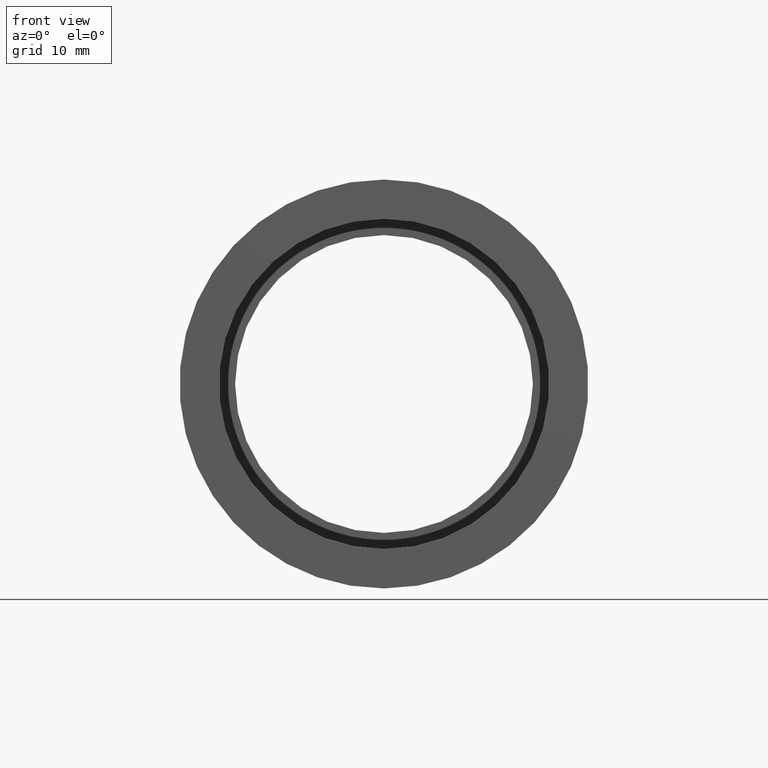
[diagram: clean part render]
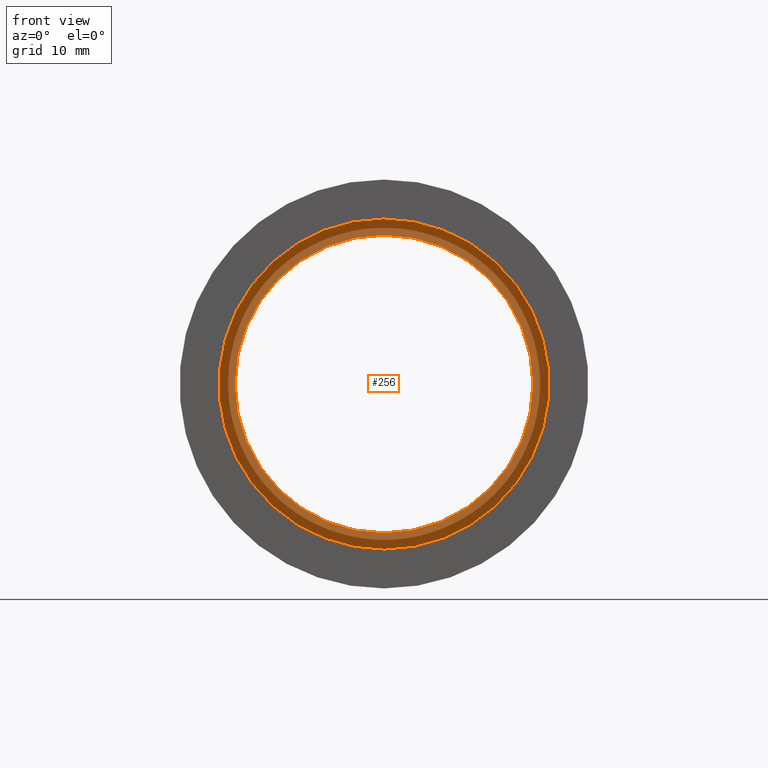
[diagram: same view with one face highlighted and labeled with its STEP entity id]
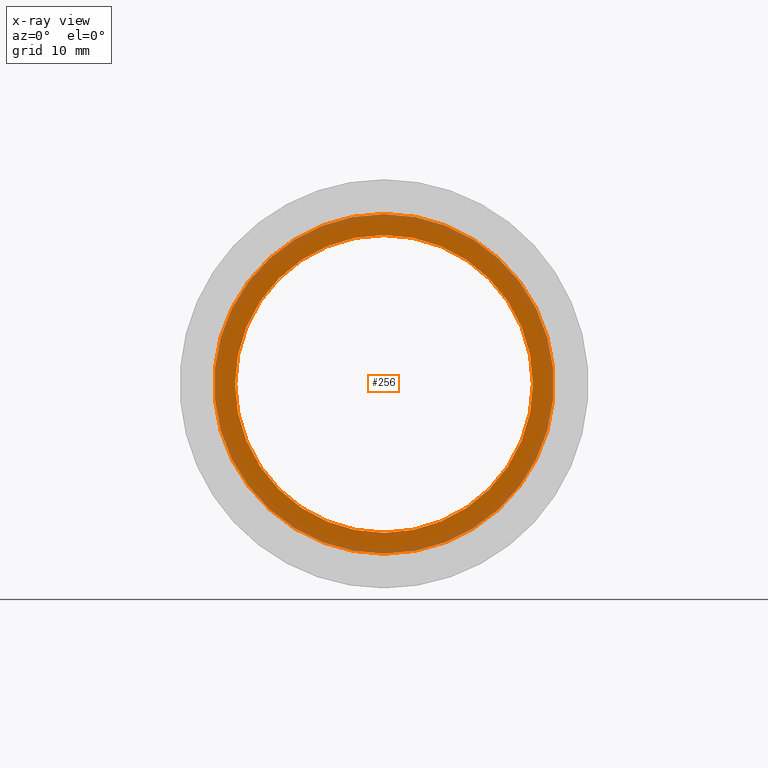
[diagram: x-ray of the same camera — body ghosted, the highlighted face saturated]
A machine part, front view. The second image highlights one B-rep face of the part: STEP entity #256.
The next image is the same camera in x-ray: the body ghosted, the highlighted face saturated — about 24% of this face is hidden behind the body in this view.
In plain terms, the highlighted planar face has unit normal (-0, 1, 0).
Its self-contained STEP definition (entity closure, byte-faithful):
#10 = AXIS2_PLACEMENT_3D ( 'NONE', #438, #198, #152 ) ;
#18 = VERTEX_POINT ( 'NONE', #231 ) ;
#31 = DIRECTION ( 'NONE',  ( 0.0000000000000000000, 0.0000000000000000000, 1.000000000000000000 ) ) ;
#38 = DIRECTION ( 'NONE',  ( 0.0000000000000000000, 0.0000000000000000000, 1.000000000000000000 ) ) ;
#41 = AXIS2_PLACEMENT_3D ( 'NONE', #609, #433, #92 ) ;
#68 = CARTESIAN_POINT ( 'NONE',  ( 0.0000000000000000000, 48.79999999999998300, 18.50000000000001100 ) ) ;
#75 = EDGE_CURVE ( 'NONE', #188, #18, #236, .T. ) ;
#92 = DIRECTION ( 'NONE',  ( 0.0000000000000000000, 0.0000000000000000000, 1.000000000000000000 ) ) ;
#111 = VERTEX_POINT ( 'NONE', #244 ) ;
#152 = DIRECTION ( 'NONE',  ( 0.0000000000000000000, 0.0000000000000000000, 1.000000000000000000 ) ) ;
#153 = EDGE_CURVE ( 'NONE', #610, #111, #466, .T. ) ;
#154 = EDGE_LOOP ( 'NONE', ( #577, #595 ) ) ;
#156 = CARTESIAN_POINT ( 'NONE',  ( 0.0000000000000000000, 48.79999999999998300, 0.0000000000000000000 ) ) ;
#188 = VERTEX_POINT ( 'NONE', #241 ) ;
#198 = DIRECTION ( 'NONE',  ( -0.0000000000000000000, 1.000000000000000000, -0.0000000000000000000 ) ) ;
#214 = FACE_BOUND ( 'NONE', #154, .T. ) ;
#231 = CARTESIAN_POINT ( 'NONE',  ( 2.584004746200916600E-015, 48.79999999999998300, -21.10000000000001200 ) ) ;
#236 = CIRCLE ( 'NONE', #554, 21.10000000000001200 ) ;
#241 = CARTESIAN_POINT ( 'NONE',  ( 0.0000000000000000000, 48.79999999999998300, 21.10000000000001200 ) ) ;
#243 = CARTESIAN_POINT ( 'NONE',  ( 0.0000000000000000000, 48.79999999999998300, 0.0000000000000000000 ) ) ;
#244 = CARTESIAN_POINT ( 'NONE',  ( 2.265596578422604600E-015, 48.79999999999998300, -18.50000000000001100 ) ) ;
#256 = ADVANCED_FACE ( 'NONE', ( #341, #214 ), #529, .F. ) ;
#276 = EDGE_CURVE ( 'NONE', #111, #610, #498, .T. ) ;
#301 = CIRCLE ( 'NONE', #539, 21.10000000000001200 ) ;
#341 = FACE_OUTER_BOUND ( 'NONE', #400, .T. ) ;
#355 = DIRECTION ( 'NONE',  ( 0.0000000000000000000, 0.0000000000000000000, 1.000000000000000000 ) ) ;
#382 = ORIENTED_EDGE ( 'NONE', *, *, #397, .F. ) ;
#397 = EDGE_CURVE ( 'NONE', #18, #188, #301, .T. ) ;
#400 = EDGE_LOOP ( 'NONE', ( #530, #382 ) ) ;
#433 = DIRECTION ( 'NONE',  ( -0.0000000000000000000, 1.000000000000000000, -0.0000000000000000000 ) ) ;
#435 = AXIS2_PLACEMENT_3D ( 'NONE', #528, #617, #38 ) ;
#438 = CARTESIAN_POINT ( 'NONE',  ( 0.0000000000000000000, 48.79999999999998300, 0.0000000000000000000 ) ) ;
#466 = CIRCLE ( 'NONE', #41, 18.50000000000001100 ) ;
#482 = DIRECTION ( 'NONE',  ( -0.0000000000000000000, 1.000000000000000000, -0.0000000000000000000 ) ) ;
#498 = CIRCLE ( 'NONE', #10, 18.50000000000001100 ) ;
#528 = CARTESIAN_POINT ( 'NONE',  ( 21.10000000000001200, 48.79999999999998300, 0.0000000000000000000 ) ) ;
#529 = PLANE ( 'NONE',  #435 ) ;
#530 = ORIENTED_EDGE ( 'NONE', *, *, #75, .F. ) ;
#539 = AXIS2_PLACEMENT_3D ( 'NONE', #156, #482, #355 ) ;
#554 = AXIS2_PLACEMENT_3D ( 'NONE', #243, #562, #31 ) ;
#562 = DIRECTION ( 'NONE',  ( -0.0000000000000000000, 1.000000000000000000, -0.0000000000000000000 ) ) ;
#577 = ORIENTED_EDGE ( 'NONE', *, *, #153, .T. ) ;
#595 = ORIENTED_EDGE ( 'NONE', *, *, #276, .T. ) ;
#609 = CARTESIAN_POINT ( 'NONE',  ( 0.0000000000000000000, 48.79999999999998300, 0.0000000000000000000 ) ) ;
#610 = VERTEX_POINT ( 'NONE', #68 ) ;
#617 = DIRECTION ( 'NONE',  ( -0.0000000000000000000, 1.000000000000000000, 0.0000000000000000000 ) ) ;